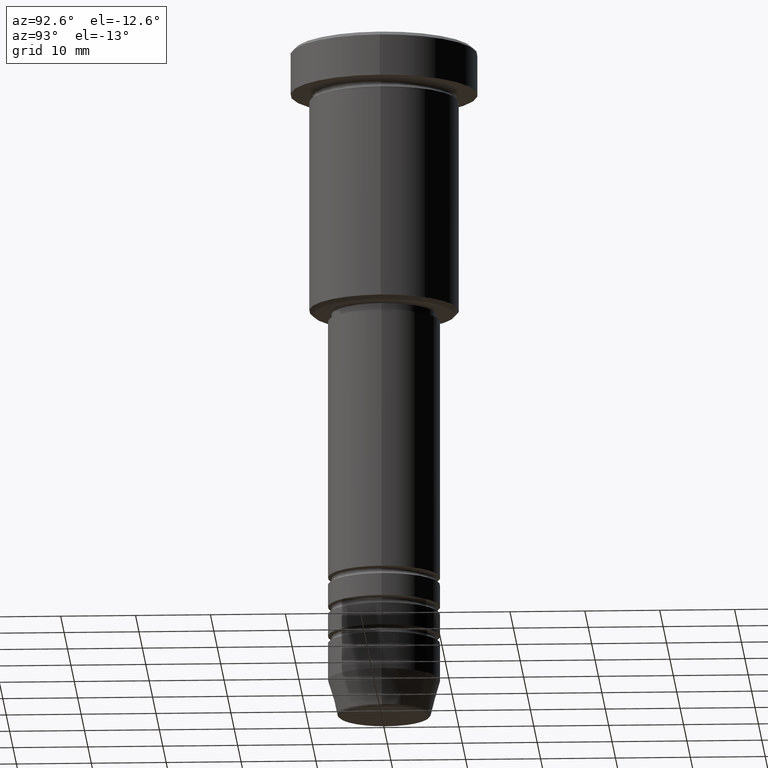
[diagram: clean part render]
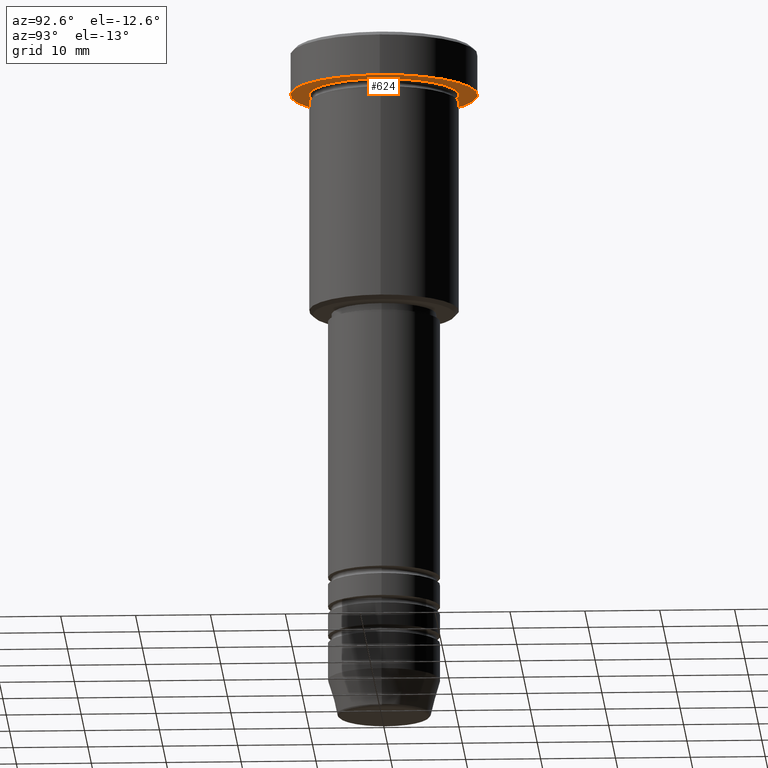
[diagram: same view with one face highlighted and labeled with its STEP entity id]
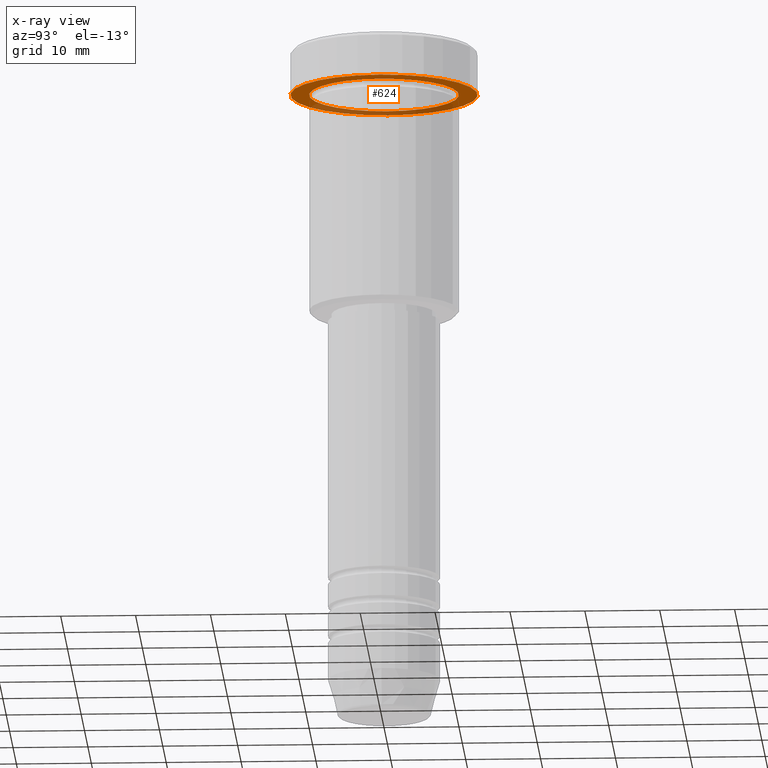
[diagram: x-ray of the same camera — body ghosted, the highlighted face saturated]
A machine part, auxiliary view. The second image highlights one B-rep face of the part: STEP entity #624.
The next image is the same camera in x-ray: the body ghosted, the highlighted face saturated — about 31% of this face is hidden behind the body in this view.
In plain terms, the highlighted planar face has unit normal (0, 0, -1).
Its self-contained STEP definition (entity closure, byte-faithful):
#21 = CIRCLE ( 'NONE', #273, 10.00000000000000000 ) ;
#37 = DIRECTION ( 'NONE',  ( -1.000000000000000000, 0.000000000000000000, -0.000000000000000000 ) ) ;
#85 = ORIENTED_EDGE ( 'NONE', *, *, #1011, .F. ) ;
#88 = DIRECTION ( 'NONE',  ( -0.000000000000000000, -0.000000000000000000, 1.000000000000000000 ) ) ;
#154 = EDGE_LOOP ( 'NONE', ( #316, #418 ) ) ;
#169 = VERTEX_POINT ( 'NONE', #213 ) ;
#179 = CARTESIAN_POINT ( 'NONE',  ( -12.50000000000000000, 1.530808498934191521E-15, -5.999999999999996447 ) ) ;
#213 = CARTESIAN_POINT ( 'NONE',  ( 12.50000000000000000, 0.000000000000000000, -5.999999999999996447 ) ) ;
#273 = AXIS2_PLACEMENT_3D ( 'NONE', #904, #88, #726 ) ;
#296 = AXIS2_PLACEMENT_3D ( 'NONE', #1116, #301, #941 ) ;
#301 = DIRECTION ( 'NONE',  ( -0.000000000000000000, -0.000000000000000000, 1.000000000000000000 ) ) ;
#316 = ORIENTED_EDGE ( 'NONE', *, *, #495, .T. ) ;
#350 = DIRECTION ( 'NONE',  ( -1.000000000000000000, 0.000000000000000000, 0.000000000000000000 ) ) ;
#374 = DIRECTION ( 'NONE',  ( -0.000000000000000000, -0.000000000000000000, 1.000000000000000000 ) ) ;
#418 = ORIENTED_EDGE ( 'NONE', *, *, #932, .T. ) ;
#452 = AXIS2_PLACEMENT_3D ( 'NONE', #1162, #998, #350 ) ;
#495 = EDGE_CURVE ( 'NONE', #993, #1076, #21, .T. ) ;
#508 = CIRCLE ( 'NONE', #452, 10.00000000000000000 ) ;
#592 = ORIENTED_EDGE ( 'NONE', *, *, #688, .F. ) ;
#615 = AXIS2_PLACEMENT_3D ( 'NONE', #662, #648, #37 ) ;
#624 = ADVANCED_FACE ( 'NONE', ( #853, #928 ), #935, .T. ) ;
#648 = DIRECTION ( 'NONE',  ( 0.000000000000000000, 0.000000000000000000, -1.000000000000000000 ) ) ;
#662 = CARTESIAN_POINT ( 'NONE',  ( 0.000000000000000000, 12.50000000000000000, -5.999999999999996447 ) ) ;
#688 = EDGE_CURVE ( 'NONE', #169, #937, #1152, .T. ) ;
#726 = DIRECTION ( 'NONE',  ( -1.000000000000000000, 0.000000000000000000, 0.000000000000000000 ) ) ;
#800 = CARTESIAN_POINT ( 'NONE',  ( 10.00000000000000000, 1.224646799147353256E-15, -5.999999999999996447 ) ) ;
#845 = AXIS2_PLACEMENT_3D ( 'NONE', #921, #374, #1105 ) ;
#853 = FACE_BOUND ( 'NONE', #154, .T. ) ;
#904 = CARTESIAN_POINT ( 'NONE',  ( 0.000000000000000000, 0.000000000000000000, -5.999999999999996447 ) ) ;
#921 = CARTESIAN_POINT ( 'NONE',  ( 0.000000000000000000, 0.000000000000000000, -5.999999999999996447 ) ) ;
#928 = FACE_OUTER_BOUND ( 'NONE', #961, .T. ) ;
#932 = EDGE_CURVE ( 'NONE', #1076, #993, #508, .T. ) ;
#935 = PLANE ( 'NONE',  #615 ) ;
#937 = VERTEX_POINT ( 'NONE', #179 ) ;
#941 = DIRECTION ( 'NONE',  ( 1.000000000000000000, 0.000000000000000000, 0.000000000000000000 ) ) ;
#961 = EDGE_LOOP ( 'NONE', ( #592, #85 ) ) ;
#993 = VERTEX_POINT ( 'NONE', #1123 ) ;
#998 = DIRECTION ( 'NONE',  ( -0.000000000000000000, -0.000000000000000000, 1.000000000000000000 ) ) ;
#1011 = EDGE_CURVE ( 'NONE', #937, #169, #1154, .T. ) ;
#1076 = VERTEX_POINT ( 'NONE', #800 ) ;
#1105 = DIRECTION ( 'NONE',  ( 1.000000000000000000, 0.000000000000000000, 0.000000000000000000 ) ) ;
#1116 = CARTESIAN_POINT ( 'NONE',  ( 0.000000000000000000, 0.000000000000000000, -5.999999999999996447 ) ) ;
#1123 = CARTESIAN_POINT ( 'NONE',  ( -10.00000000000000000, 0.000000000000000000, -5.999999999999996447 ) ) ;
#1152 = CIRCLE ( 'NONE', #296, 12.50000000000000000 ) ;
#1154 = CIRCLE ( 'NONE', #845, 12.50000000000000000 ) ;
#1162 = CARTESIAN_POINT ( 'NONE',  ( 0.000000000000000000, 0.000000000000000000, -5.999999999999996447 ) ) ;